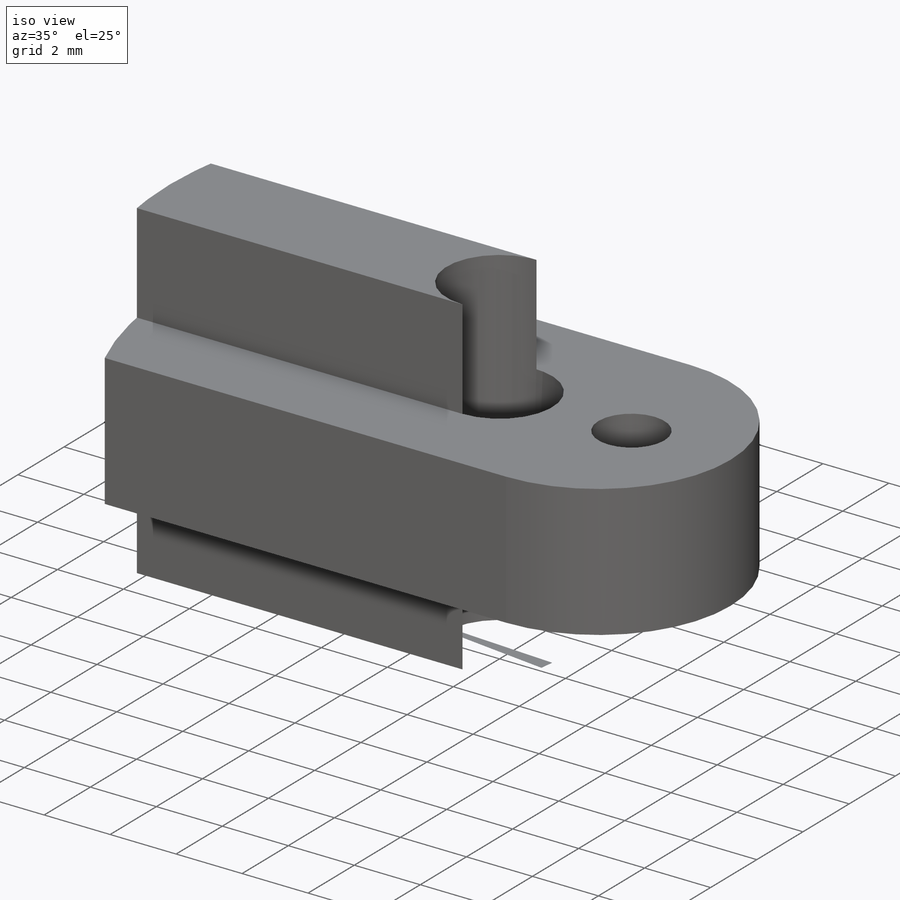
[diagram: iso view]
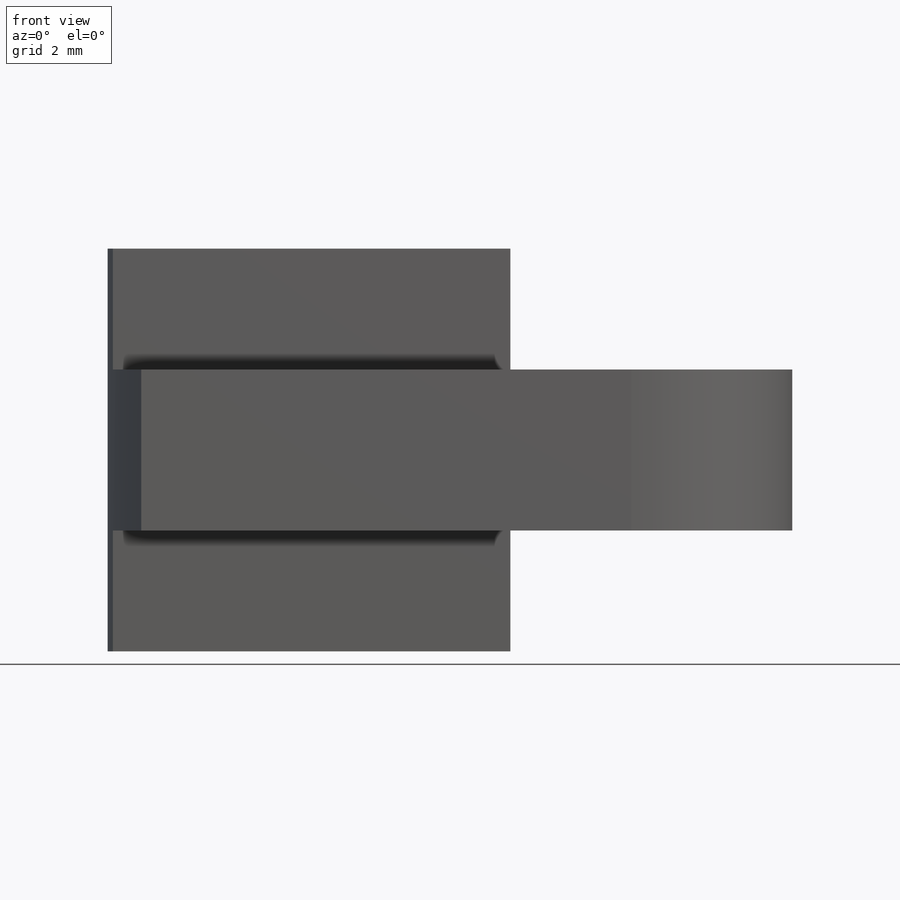
[diagram: front view]
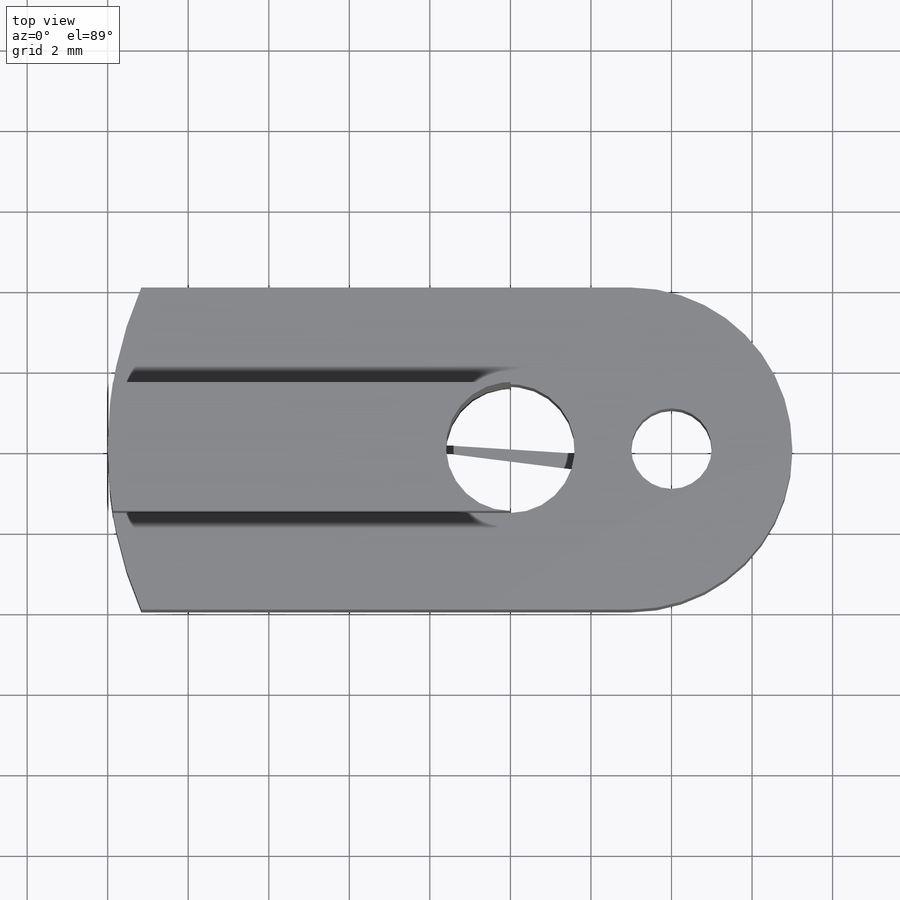
[diagram: top view]
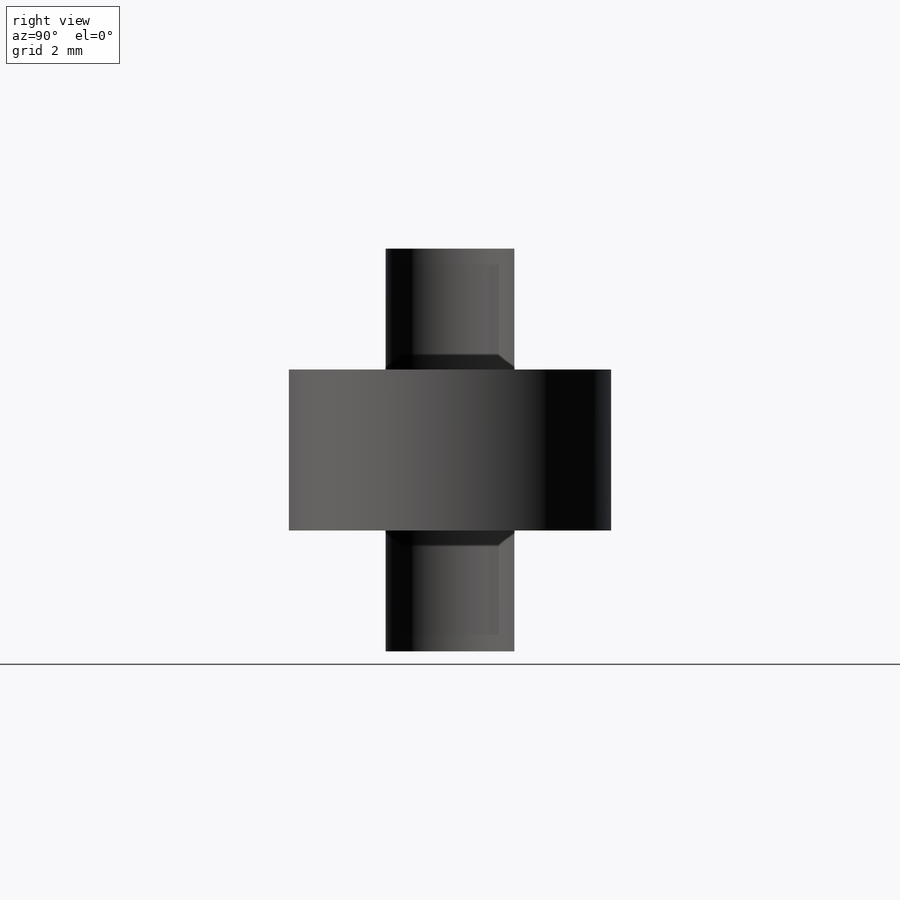
[diagram: right view]
SOLIDWORKS PART (.sldprt)
format: sldprt  version: not decoded by parser v0  size: 193,024 bytes
history: native  units: mm
features: sketch x4, extrude x3, cut_extrude x2, material x1, plane x1 (+13 scaffold rows collapsed)
feature tree (24):
  scaffold x13  (default folders/planes/origin — collapsed)
  material  "ABS"
  sketch  "Sketch2"  dims[D1=20.0mm D2=3.2mm D3=~4.824952mm]
  extrude  "Boss-Extrude3"  Depth=10mm
  plane  "Plane1"  Offset=5mm
  extrude  "Point3"  [1 undecoded]
  sketch  "Sketch3"  dims[D1=20.0mm D3=8.0mm D2=13.0mm D4=~1.547233mm]
  extrude  "Boss-Extrude5"  Depth=2mm
  sketch  "Sketch4"  dims[D1=1.6mm]
  cut_extrude  "Cut-Extrude1"  [1 undecoded]
  sketch  "Sketch5"  dims[c1.D1=~1.17721mm c1.D2=2.0mm c2.D1=4.0mm]
  cut_extrude  "Cut-Extrude3"  [1 undecoded]
decode coverage: 6 of 9 modeling features carry decoded parameters
note: ~ marks probable driven/reference dimensions
note: 3 parameter values undecoded
summary: no parameter record found for 3 features
note: suppression state not decoded; provenance and decode notes live in map.json
